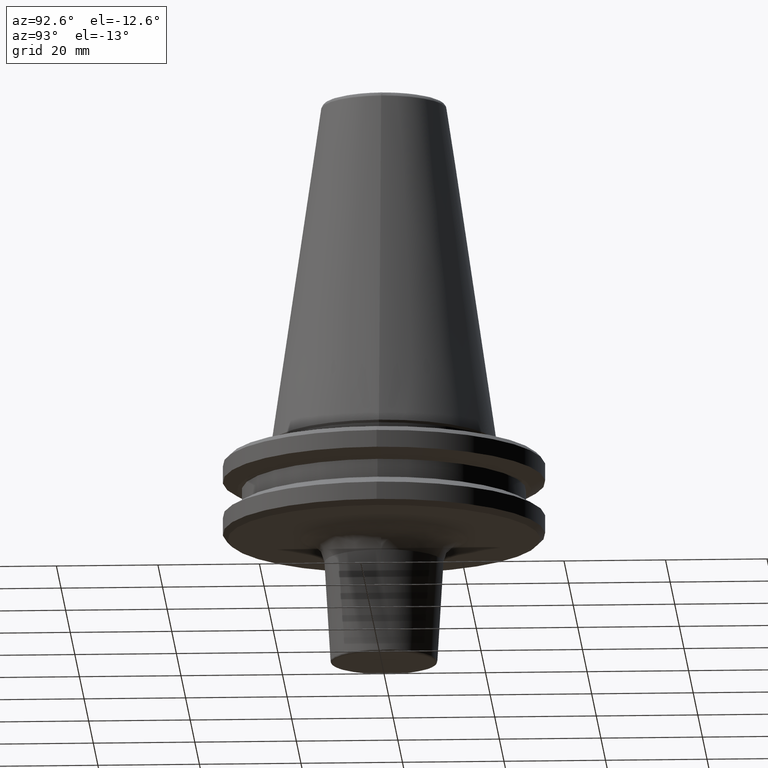
[diagram: clean part render]
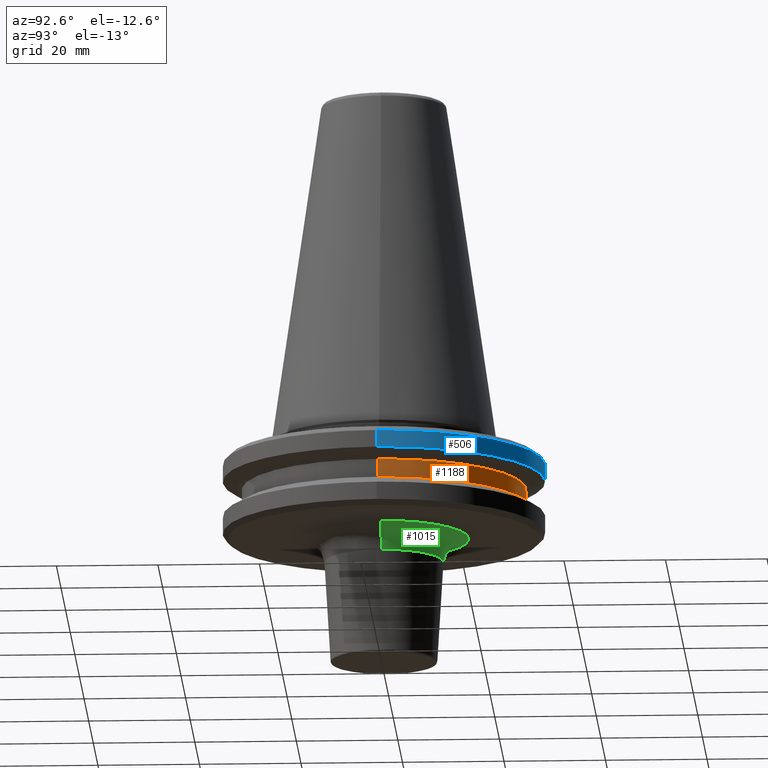
[diagram: same view with three faces highlighted in distinct colors, each labeled with its STEP entity id]
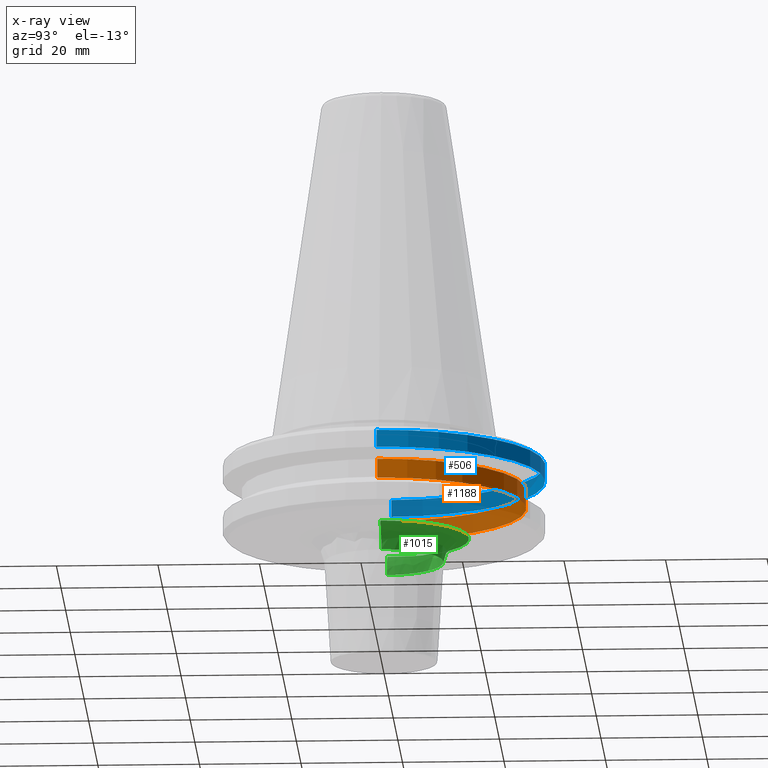
[diagram: x-ray of the same camera — body ghosted, the three highlighted faces saturated]
A machine part, auxiliary view with three faces highlighted in distinct colors.
The next image is the same camera in x-ray (body ghosted, the three faces saturated) — at least one of them is partly hidden behind the body in this view.
Their STEP definitions:

[orange] entity #1188 — the highlighted cylindrical surface (partial cylindrical patch) has radius 28 mm, axis along (0, 0, 1).
#118 = AXIS2_PLACEMENT_3D ( 'NONE', #353, #350, #347 ) ;
#231 = DIRECTION ( 'NONE',  ( 0.0000000000000000000, 0.0000000000000000000, 1.000000000000000000 ) ) ;
#246 = EDGE_LOOP ( 'NONE', ( #766, #1271, #1167, #858 ) ) ;
#305 = EDGE_CURVE ( 'NONE', #515, #1224, #435, .T. ) ;
#338 = CARTESIAN_POINT ( 'NONE',  ( 28.00000000000000000, 0.0000000000000000000, 113.5216080541959500 ) ) ;
#341 = DIRECTION ( 'NONE',  ( 0.0000000000000000000, 0.0000000000000000000, 1.000000000000000000 ) ) ;
#347 = DIRECTION ( 'NONE',  ( 1.000000000000000000, 0.0000000000000000000, 0.0000000000000000000 ) ) ;
#350 = DIRECTION ( 'NONE',  ( -0.0000000000000000000, -0.0000000000000000000, -1.000000000000000000 ) ) ;
#353 = CARTESIAN_POINT ( 'NONE',  ( 0.0000000000000000000, 0.0000000000000000000, -9.199999999999999300 ) ) ;
#364 = CIRCLE ( 'NONE', #118, 28.00000000000000000 ) ;
#435 = LINE ( 'NONE', #1361, #821 ) ;
#463 = VERTEX_POINT ( 'NONE', #1366 ) ;
#470 = CIRCLE ( 'NONE', #556, 28.00000000000000000 ) ;
#471 = DIRECTION ( 'NONE',  ( 1.000000000000000000, 0.0000000000000000000, 0.0000000000000000000 ) ) ;
#515 = VERTEX_POINT ( 'NONE', #1385 ) ;
#556 = AXIS2_PLACEMENT_3D ( 'NONE', #750, #747, #741 ) ;
#594 = EDGE_CURVE ( 'NONE', #1242, #515, #470, .T. ) ;
#623 = CARTESIAN_POINT ( 'NONE',  ( 0.0000000000000000000, 0.0000000000000000000, 113.5216080541959500 ) ) ;
#741 = DIRECTION ( 'NONE',  ( 1.000000000000000000, 0.0000000000000000000, 0.0000000000000000000 ) ) ;
#747 = DIRECTION ( 'NONE',  ( 0.0000000000000000000, 0.0000000000000000000, 1.000000000000000000 ) ) ;
#750 = CARTESIAN_POINT ( 'NONE',  ( 0.0000000000000000000, 0.0000000000000000000, -13.00000000000001100 ) ) ;
#766 = ORIENTED_EDGE ( 'NONE', *, *, #594, .T. ) ;
#809 = CYLINDRICAL_SURFACE ( 'NONE', #1371, 28.00000000000000000 ) ;
#821 = VECTOR ( 'NONE', #1068, 1000.000000000000000 ) ;
#839 = LINE ( 'NONE', #338, #1505 ) ;
#858 = ORIENTED_EDGE ( 'NONE', *, *, #1003, .F. ) ;
#985 = EDGE_CURVE ( 'NONE', #1224, #463, #364, .T. ) ;
#1003 = EDGE_CURVE ( 'NONE', #1242, #463, #839, .T. ) ;
#1068 = DIRECTION ( 'NONE',  ( 0.0000000000000000000, 0.0000000000000000000, 1.000000000000000000 ) ) ;
#1145 = CARTESIAN_POINT ( 'NONE',  ( 28.00000000000000000, 0.0000000000000000000, -13.00000000000001100 ) ) ;
#1167 = ORIENTED_EDGE ( 'NONE', *, *, #985, .T. ) ;
#1188 = ADVANCED_FACE ( 'NONE', ( #1191 ), #809, .T. ) ;
#1191 = FACE_OUTER_BOUND ( 'NONE', #246, .T. ) ;
#1224 = VERTEX_POINT ( 'NONE', #1433 ) ;
#1242 = VERTEX_POINT ( 'NONE', #1145 ) ;
#1271 = ORIENTED_EDGE ( 'NONE', *, *, #305, .T. ) ;
#1361 = CARTESIAN_POINT ( 'NONE',  ( -28.00000000000000000, 3.429011037612589300E-015, 113.5216080541959500 ) ) ;
#1366 = CARTESIAN_POINT ( 'NONE',  ( 28.00000000000000000, 0.0000000000000000000, -9.199999999999999300 ) ) ;
#1371 = AXIS2_PLACEMENT_3D ( 'NONE', #623, #231, #471 ) ;
#1385 = CARTESIAN_POINT ( 'NONE',  ( -28.00000000000000000, 3.429011037612594400E-015, -13.00000000000001100 ) ) ;
#1433 = CARTESIAN_POINT ( 'NONE',  ( -28.00000000000000000, 3.429011037612594400E-015, -9.199999999999999300 ) ) ;
#1505 = VECTOR ( 'NONE', #341, 1000.000000000000000 ) ;

[blue] entity #506 — the highlighted cylindrical surface (partial cylindrical patch) has radius 31.75 mm, axis along (0, 0, 1).
#14 = VERTEX_POINT ( 'NONE', #582 ) ;
#76 = CARTESIAN_POINT ( 'NONE',  ( 0.0000000000000000000, 0.0000000000000000000, -7.578163357943284800 ) ) ;
#100 = DIRECTION ( 'NONE',  ( 0.0000000000000000000, 0.0000000000000000000, 1.000000000000000000 ) ) ;
#141 = EDGE_CURVE ( 'NONE', #14, #888, #1398, .T. ) ;
#163 = FACE_OUTER_BOUND ( 'NONE', #1344, .T. ) ;
#169 = CIRCLE ( 'NONE', #1029, 31.74999999999983300 ) ;
#308 = DIRECTION ( 'NONE',  ( 1.000000000000000000, 0.0000000000000000000, 0.0000000000000000000 ) ) ;
#384 = ORIENTED_EDGE ( 'NONE', *, *, #1428, .F. ) ;
#392 = VERTEX_POINT ( 'NONE', #1120 ) ;
#506 = ADVANCED_FACE ( 'NONE', ( #163 ), #1259, .T. ) ;
#582 = CARTESIAN_POINT ( 'NONE',  ( 31.75000000000000000, 0.0000000000000000000, -7.578163357943284800 ) ) ;
#584 = CARTESIAN_POINT ( 'NONE',  ( 31.75000000000000000, 0.0000000000000000000, 113.5216080541959500 ) ) ;
#595 = DIRECTION ( 'NONE',  ( 0.0000000000000000000, 0.0000000000000000000, 1.000000000000000000 ) ) ;
#604 = VERTEX_POINT ( 'NONE', #961 ) ;
#618 = CARTESIAN_POINT ( 'NONE',  ( -31.75000000000000000, 3.888253587292846500E-015, -7.578163357943284800 ) ) ;
#636 = AXIS2_PLACEMENT_3D ( 'NONE', #1197, #1166, #1515 ) ;
#665 = DIRECTION ( 'NONE',  ( 1.000000000000000000, 0.0000000000000000000, 0.0000000000000000000 ) ) ;
#668 = DIRECTION ( 'NONE',  ( -0.0000000000000000000, -0.0000000000000000000, 1.000000000000000000 ) ) ;
#704 = CARTESIAN_POINT ( 'NONE',  ( 0.0000000000000000000, 0.0000000000000000000, -4.199999999999926500 ) ) ;
#740 = ORIENTED_EDGE ( 'NONE', *, *, #779, .T. ) ;
#779 = EDGE_CURVE ( 'NONE', #888, #392, #982, .T. ) ;
#857 = DIRECTION ( 'NONE',  ( 0.0000000000000000000, 0.0000000000000000000, 1.000000000000000000 ) ) ;
#888 = VERTEX_POINT ( 'NONE', #618 ) ;
#896 = EDGE_CURVE ( 'NONE', #14, #604, #1380, .T. ) ;
#937 = VECTOR ( 'NONE', #857, 1000.000000000000000 ) ;
#961 = CARTESIAN_POINT ( 'NONE',  ( 31.74999999999983300, 0.0000000000000000000, -4.199999999999926500 ) ) ;
#982 = LINE ( 'NONE', #1047, #937 ) ;
#1029 = AXIS2_PLACEMENT_3D ( 'NONE', #704, #668, #665 ) ;
#1047 = CARTESIAN_POINT ( 'NONE',  ( -31.75000000000000000, 3.888253587292846500E-015, 113.5216080541959500 ) ) ;
#1120 = CARTESIAN_POINT ( 'NONE',  ( -31.74999999999983300, 3.888253587292836200E-015, -4.199999999999926500 ) ) ;
#1166 = DIRECTION ( 'NONE',  ( 0.0000000000000000000, 0.0000000000000000000, 1.000000000000000000 ) ) ;
#1197 = CARTESIAN_POINT ( 'NONE',  ( 0.0000000000000000000, 0.0000000000000000000, 113.5216080541959500 ) ) ;
#1228 = VECTOR ( 'NONE', #595, 1000.000000000000000 ) ;
#1255 = ORIENTED_EDGE ( 'NONE', *, *, #141, .T. ) ;
#1259 = CYLINDRICAL_SURFACE ( 'NONE', #636, 31.75000000000000000 ) ;
#1268 = ORIENTED_EDGE ( 'NONE', *, *, #896, .F. ) ;
#1344 = EDGE_LOOP ( 'NONE', ( #1255, #740, #384, #1268 ) ) ;
#1354 = AXIS2_PLACEMENT_3D ( 'NONE', #76, #100, #308 ) ;
#1380 = LINE ( 'NONE', #584, #1228 ) ;
#1398 = CIRCLE ( 'NONE', #1354, 31.75000000000000000 ) ;
#1428 = EDGE_CURVE ( 'NONE', #604, #392, #169, .T. ) ;
#1515 = DIRECTION ( 'NONE',  ( 1.000000000000000000, 0.0000000000000000000, 0.0000000000000000000 ) ) ;

[green] entity #1015 — the highlighted face is a freeform B-spline surface patch.
#4 = CARTESIAN_POINT ( 'NONE',  ( 15.56066614214688200, 6.087461871300401000, -19.10000000000000500 ) ) ;
#5 = CARTESIAN_POINT ( 'NONE',  ( 16.33148562144493700, 3.573096658816918000, -19.10000000000000900 ) ) ;
#13 = EDGE_LOOP ( 'NONE', ( #38, #1502, #669, #1442, #670 ) ) ;
#38 = ORIENTED_EDGE ( 'NONE', *, *, #977, .F. ) ;
#62 = CARTESIAN_POINT ( 'NONE',  ( 15.62173324705955600, 5.929593814993572700, -19.10000000000000100 ) ) ;
#125 = CARTESIAN_POINT ( 'NONE',  ( 16.70899191454728300, 0.5109131243993810800, -19.10000000000000900 ) ) ;
#132 = CARTESIAN_POINT ( 'NONE',  ( 15.58521129710881000, 6.024348239625146200, -19.10000000000000100 ) ) ;
#139 = CARTESIAN_POINT ( 'NONE',  ( -16.70899191454727600, 2.046261346512933100E-015, -19.10000000000000900 ) ) ;
#189 = DIRECTION ( 'NONE',  ( -1.224646799147353200E-016, -1.000000000000000000, 0.0000000000000000000 ) ) ;
#198 = CARTESIAN_POINT ( 'NONE',  ( 16.67412310652930100, 1.274150364136525300, -19.10000000000000900 ) ) ;
#230 = VERTEX_POINT ( 'NONE', #513 ) ;
#235 = CARTESIAN_POINT ( 'NONE',  ( -16.70899191454728000, 2.046261346512933500E-015, -19.10000000000001200 ) ) ;
#241 = CARTESIAN_POINT ( 'NONE',  ( -16.70899191454727600, 33.41798382909455300, -19.10000000000001200 ) ) ;
#243 = CARTESIAN_POINT ( 'NONE',  ( 16.70899191454728000, 33.41798382909455300, -19.10000000000001200 ) ) ;
#244 = CARTESIAN_POINT ( 'NONE',  ( 16.70899191454728000, 0.0000000000000000000, -19.10000000000001200 ) ) ;
#247 = CARTESIAN_POINT ( 'NONE',  ( -13.91738258006084200, 1.704387802918064000E-015, -19.10000000000000900 ) ) ;
#253 = CARTESIAN_POINT ( 'NONE',  ( -13.91738258006084000, 27.83476516012168000, -19.10000000000001600 ) ) ;
#256 = CARTESIAN_POINT ( 'NONE',  ( 13.91738258006084000, 27.83476516012168000, -19.10000000000001600 ) ) ;
#257 = CARTESIAN_POINT ( 'NONE',  ( 13.91738258006084200, 0.0000000000000000000, -19.10000000000000900 ) ) ;
#263 = CARTESIAN_POINT ( 'NONE',  ( -11.88516356507829700, 1.455512751731588300E-015, -21.01394058202840800 ) ) ;
#266 = CARTESIAN_POINT ( 'NONE',  ( -11.88516356507829600, 23.77032713015659100, -21.01394058202841500 ) ) ;
#269 = CARTESIAN_POINT ( 'NONE',  ( 11.88516356507829900, 23.77032713015659100, -21.01394058202841500 ) ) ;
#278 = CARTESIAN_POINT ( 'NONE',  ( 11.88516356507829700, 0.0000000000000000000, -21.01394058202840800 ) ) ;
#286 = CARTESIAN_POINT ( 'NONE',  ( -11.71796768721838500, 1.435037162066410900E-015, -23.80053854636027200 ) ) ;
#289 = CARTESIAN_POINT ( 'NONE',  ( -11.71796768721838200, 23.43593537443676700, -23.80053854636027200 ) ) ;
#290 = CARTESIAN_POINT ( 'NONE',  ( 11.71796768721838500, 23.43593537443676700, -23.80053854636027200 ) ) ;
#294 = CARTESIAN_POINT ( 'NONE',  ( 11.71796768721838500, 0.0000000000000000000, -23.80053854636027200 ) ) ;
#326 = CARTESIAN_POINT ( 'NONE',  ( -11.71796768721838500, 1.740649254289672300E-015, -23.80053854636027200 ) ) ;
#344 = CARTESIAN_POINT ( 'NONE',  ( 16.45283330147772800, 2.914738401240459400, -19.10000000000000500 ) ) ;
#345 = CARTESIAN_POINT ( 'NONE',  ( 14.13790343973266100, 8.905924171324393500, -19.10000000000000100 ) ) ;
#348 = CARTESIAN_POINT ( 'NONE',  ( 14.50404968136630900, 8.304593459410961400, -19.10000000000000900 ) ) ;
#371 = DIRECTION ( 'NONE',  ( 1.000000000000000000, 0.0000000000000000000, 0.0000000000000000000 ) ) ;
#376 = DIRECTION ( 'NONE',  ( -0.0000000000000000000, -0.0000000000000000000, -1.000000000000000000 ) ) ;
#379 = CARTESIAN_POINT ( 'NONE',  ( 0.0000000000000000000, 0.0000000000000000000, -23.80053854636027200 ) ) ;
#381 = CARTESIAN_POINT ( 'NONE',  ( 14.25024019506500400, 8.726806685066005500, -19.09999999999999800 ) ) ;
#405 = CARTESIAN_POINT ( 'NONE',  ( 1.435037162066411100E-015, 11.71796768721838700, -23.80053854636027200 ) ) ;
#443 = CARTESIAN_POINT ( 'NONE',  ( 15.54881040975413100, 6.117688604166787100, -19.10000000000000900 ) ) ;
#487 = CARTESIAN_POINT ( 'NONE',  ( 15.70488065283292800, 5.707912317689069100, -19.10000000000000900 ) ) ;
#513 = CARTESIAN_POINT ( 'NONE',  ( 11.71796768721838500, 0.0000000000000000000, -23.80053854636027200 ) ) ;
#536 = CARTESIAN_POINT ( 'NONE',  ( 12.63042113517344600, 10.99960928808532900, -19.10000000000000500 ) ) ;
#540 = CARTESIAN_POINT ( 'NONE',  ( -16.70899191454727600, 2.046261346512933100E-015, -24.10000000000000900 ) ) ;
#570 = CARTESIAN_POINT ( 'NONE',  ( 0.0000000000000000000, 0.0000000000000000000, -23.80053854636027200 ) ) ;
#596 = CARTESIAN_POINT ( 'NONE',  ( 16.43620118971337600, 3.007126828543615000, -19.10000000000000100 ) ) ;
#622 = VERTEX_POINT ( 'NONE', #734 ) ;
#643 = DIRECTION ( 'NONE',  ( -0.0000000000000000000, -0.0000000000000000000, -1.000000000000000000 ) ) ;
#644 = CARTESIAN_POINT ( 'NONE',  ( 15.32806192371163000, 6.675338272899773900, -19.10000000000000100 ) ) ;
#652 = CARTESIAN_POINT ( 'NONE',  ( 15.86289355459953200, 5.262197963756685600, -19.10000000000000100 ) ) ;
#659 = CIRCLE ( 'NONE', #897, 11.71796768721838500 ) ;
#669 = ORIENTED_EDGE ( 'NONE', *, *, #1409, .F. ) ;
#670 = ORIENTED_EDGE ( 'NONE', *, *, #1208, .F. ) ;
#693 = DIRECTION ( 'NONE',  ( 1.000000000000000000, 0.0000000000000000000, 0.0000000000000000000 ) ) ;
#706 = CARTESIAN_POINT ( 'NONE',  ( 16.44157358222191300, 2.977591022491218100, -19.09999999999999400 ) ) ;
#713 = DIRECTION ( 'NONE',  ( 1.000000000000000000, 0.0000000000000000000, 0.0000000000000000000 ) ) ;
#719 = DIRECTION ( 'NONE',  ( 0.0000000000000000000, 1.000000000000000000, 0.0000000000000000000 ) ) ;
#722 = CARTESIAN_POINT ( 'NONE',  ( 16.70899191454727600, 0.0000000000000000000, -24.10000000000000900 ) ) ;
#734 = CARTESIAN_POINT ( 'NONE',  ( 16.70899191454727600, 0.0000000000000000000, -19.10000000000000900 ) ) ;
#785 = CARTESIAN_POINT ( 'NONE',  ( 16.14579171901220200, 4.361363818598465300, -19.10000000000000100 ) ) ;
#806 = EDGE_CURVE ( 'NONE', #230, #622, #1032, .T. ) ;
#897 = AXIS2_PLACEMENT_3D ( 'NONE', #379, #376, #371 ) ;
#901 = CARTESIAN_POINT ( 'NONE',  ( 14.02478801515494700, 9.082997829093526900, -19.10000000000000500 ) ) ;
#935 = CARTESIAN_POINT ( 'NONE',  ( 13.35436265842265700, 10.10853159735744500, -19.10000000000000500 ) ) ;
#940 = AXIS2_PLACEMENT_3D ( 'NONE', #570, #643, #693 ) ;
#964 = CARTESIAN_POINT ( 'NONE',  ( -16.70899191454727600, 2.046261346512933100E-015, -19.10000000000000900 ) ) ;
#966 = CARTESIAN_POINT ( 'NONE',  ( 16.70899191454727600, 0.0000000000000000000, -19.10000000000000900 ) ) ;
#969 = CARTESIAN_POINT ( 'NONE',  ( -16.70899191454728000, 1.022181789261935600, -19.10000000000000500 ) ) ;
#977 = EDGE_CURVE ( 'NONE', #1012, #1288, #659, .T. ) ;
#994 = CARTESIAN_POINT ( 'NONE',  ( -16.61600842649934900, 2.035654846428921700, -19.10000000000000900 ) ) ;
#998 = CARTESIAN_POINT ( 'NONE',  ( -16.42422998240048000, 3.071818056659372700, -19.10000000000000500 ) ) ;
#1007 = CARTESIAN_POINT ( 'NONE',  ( -16.41761142749612600, 3.107017245632829500, -19.10000000000000100 ) ) ;
#1012 = VERTEX_POINT ( 'NONE', #326 ) ;
#1015 = ADVANCED_FACE ( 'NONE', ( #1534 ), #1472, .F. ) ;
#1020 = CARTESIAN_POINT ( 'NONE',  ( 14.06222087813260500, 9.024928931269464300, -19.10000000000000900 ) ) ;
#1031 = CARTESIAN_POINT ( 'NONE',  ( -16.40488619115013700, 3.173529372141791400, -19.10000000000000900 ) ) ;
#1032 = CIRCLE ( 'NONE', #1289, 4.999999999999997300 ) ;
#1034 = CARTESIAN_POINT ( 'NONE',  ( -16.38550312319250300, 3.273211614282239600, -19.10000000000000500 ) ) ;
#1037 = CARTESIAN_POINT ( 'NONE',  ( -16.33820947055414400, 3.505201879248992300, -19.10000000000000100 ) ) ;
#1041 = CARTESIAN_POINT ( 'NONE',  ( 14.97843021607224800, 7.443077310558981800, -19.10000000000000500 ) ) ;
#1043 = VERTEX_POINT ( 'NONE', #139 ) ;
#1045 = CARTESIAN_POINT ( 'NONE',  ( -16.23535618899525800, 3.966775875738679100, -19.10000000000000500 ) ) ;
#1051 = CARTESIAN_POINT ( 'NONE',  ( -15.99658572074876700, 4.880297734942744500, -19.10000000000000500 ) ) ;
#1062 = CARTESIAN_POINT ( 'NONE',  ( -15.73524433917402200, 5.646814527788558600, -19.10000000000000500 ) ) ;
#1075 = CARTESIAN_POINT ( 'NONE',  ( -15.52336150878772300, 6.181971338236239800, -19.10000000000000500 ) ) ;
#1085 = CARTESIAN_POINT ( 'NONE',  ( -15.50973603678870000, 6.216084941041397200, -19.10000000000000100 ) ) ;
#1092 = CARTESIAN_POINT ( 'NONE',  ( -15.48335104158715400, 6.281523939450195800, -19.10000000000000500 ) ) ;
#1097 = CARTESIAN_POINT ( 'NONE',  ( -15.44347772148737600, 6.379528020287766700, -19.10000000000000500 ) ) ;
#1115 = CARTESIAN_POINT ( 'NONE',  ( 16.46945046779878700, 2.820434997123213400, -19.10000000000000900 ) ) ;
#1127 = CARTESIAN_POINT ( 'NONE',  ( -15.34836918350574400, 6.607123291479351400, -19.10000000000000900 ) ) ;
#1140 = CARTESIAN_POINT ( 'NONE',  ( -15.14986894321383400, 7.057990164144843700, -19.10000000000000900 ) ) ;
#1141 = EDGE_CURVE ( 'NONE', #1012, #1043, #1525, .T. ) ;
#1162 = CARTESIAN_POINT ( 'NONE',  ( -14.71973580531538800, 7.942429230605181800, -19.10000000000000100 ) ) ;
#1163 = CARTESIAN_POINT ( 'NONE',  ( -14.29425141743458200, 8.670871838078625200, -19.10000000000000100 ) ) ;
#1170 = CIRCLE ( 'NONE', #940, 11.71796768721838500 ) ;
#1173 = CARTESIAN_POINT ( 'NONE',  ( -13.94673870596859200, 9.202379783223145500, -19.10000000000000500 ) ) ;
#1179 = CARTESIAN_POINT ( 'NONE',  ( -13.90606175176200800, 9.263750344970906900, -19.10000000000000500 ) ) ;
#1182 = CARTESIAN_POINT ( 'NONE',  ( -13.82569420036957200, 9.383296176287261800, -19.10000000000000500 ) ) ;
#1189 = AXIS2_PLACEMENT_3D ( 'NONE', #540, #189, #1333 ) ;
#1194 = CARTESIAN_POINT ( 'NONE',  ( -13.70406479959128300, 9.561733754480993500, -19.10000000000000900 ) ) ;
#1196 = CARTESIAN_POINT ( 'NONE',  ( -13.41271634861447000, 9.971919922134114600, -19.10000000000000500 ) ) ;
#1200 = CARTESIAN_POINT ( 'NONE',  ( -12.79983338335100600, 10.76761953157802800, -19.10000000000000500 ) ) ;
#1208 = EDGE_CURVE ( 'NONE', #1288, #230, #1170, .T. ) ;
#1211 = CARTESIAN_POINT ( 'NONE',  ( -12.22275759030831000, 11.40735166676596900, -19.10000000000000900 ) ) ;
#1217 = CARTESIAN_POINT ( 'NONE',  ( -10.99960928808611800, 12.63042113517079600, -19.10000000000000100 ) ) ;
#1220 = CARTESIAN_POINT ( 'NONE',  ( -10.10853159735479400, 13.35436265842344600, -19.10000000000000500 ) ) ;
#1222 = CARTESIAN_POINT ( 'NONE',  ( -9.082997829093686800, 14.02478801515490400, -19.10000000000000900 ) ) ;
#1229 = CARTESIAN_POINT ( 'NONE',  ( -9.024928931269943900, 14.06222087813241500, -19.10000000000000500 ) ) ;
#1247 = CARTESIAN_POINT ( 'NONE',  ( -8.905924171325299500, 14.13790343973228200, -19.10000000000000100 ) ) ;
#1251 = CARTESIAN_POINT ( 'NONE',  ( -8.726806685067515400, 14.25024019506437300, -19.10000000000000900 ) ) ;
#1263 = CARTESIAN_POINT ( 'NONE',  ( -8.304593459413538900, 14.50404968136522800, -19.10000000000000500 ) ) ;
#1266 = CARTESIAN_POINT ( 'NONE',  ( -7.443077310562433300, 14.97843021607080300, -19.10000000000000500 ) ) ;
#1270 = CARTESIAN_POINT ( 'NONE',  ( -6.675338272901745600, 15.32806192371080700, -19.10000000000000900 ) ) ;
#1276 = CARTESIAN_POINT ( 'NONE',  ( -6.117688604166660900, 15.54881040975418000, -19.10000000000000500 ) ) ;
#1278 = CARTESIAN_POINT ( 'NONE',  ( -6.087461871300481800, 15.56066614214685700, -19.10000000000000900 ) ) ;
#1283 = CARTESIAN_POINT ( 'NONE',  ( -6.024348239625304300, 15.58521129710876500, -19.10000000000000500 ) ) ;
#1288 = VERTEX_POINT ( 'NONE', #405 ) ;
#1289 = AXIS2_PLACEMENT_3D ( 'NONE', #722, #719, #713 ) ;
#1294 = CARTESIAN_POINT ( 'NONE',  ( -5.929593814993849000, 15.62173324705947400, -19.10000000000000900 ) ) ;
#1296 = CARTESIAN_POINT ( 'NONE',  ( -5.707912317689572700, 15.70488065283278300, -19.10000000000001200 ) ) ;
#1298 = CARTESIAN_POINT ( 'NONE',  ( -5.262197963757556900, 15.86289355459927300, -19.10000000000000900 ) ) ;
#1299 = CARTESIAN_POINT ( 'NONE',  ( 16.57242241647687200, 2.159112028488154000, -19.10000000000000100 ) ) ;
#1300 = CARTESIAN_POINT ( 'NONE',  ( -4.361363818599620900, 16.14579171901183200, -19.10000000000000900 ) ) ;
#1303 = CARTESIAN_POINT ( 'NONE',  ( -3.573096658817576500, 16.33148562144472700, -19.10000000000000100 ) ) ;
#1310 = CARTESIAN_POINT ( 'NONE',  ( -3.007126828543572800, 16.43620118971340500, -19.10000000000000900 ) ) ;
#1331 = CARTESIAN_POINT ( 'NONE',  ( -2.977580239806663500, 16.44157557723099900, -19.10000000000000500 ) ) ;
#1332 = CARTESIAN_POINT ( 'NONE',  ( 16.50631696794280100, 2.600222415161877800, -19.10000000000001200 ) ) ;
#1333 = DIRECTION ( 'NONE',  ( -1.000000000000000000, 1.224646799147353500E-016, 0.0000000000000000000 ) ) ;
#1335 = CARTESIAN_POINT ( 'NONE',  ( -2.914717349332521600, 16.45283719649544100, -19.10000000000000100 ) ) ;
#1338 = CARTESIAN_POINT ( 'NONE',  ( -2.820399054841368900, 16.46945711782902700, -19.10000000000000500 ) ) ;
#1340 = CARTESIAN_POINT ( 'NONE',  ( -2.600155322902434100, 16.50632938133259800, -19.10000000000000900 ) ) ;
#1343 = CARTESIAN_POINT ( 'NONE',  ( -2.158997013186251500, 16.57244369657366100, -19.10000000000000500 ) ) ;
#1348 = CARTESIAN_POINT ( 'NONE',  ( -1.273997010400660800, 16.67415147999167500, -19.10000000000000900 ) ) ;
#1353 = CARTESIAN_POINT ( 'NONE',  ( -0.5108254936931753100, 16.70900812795435500, -19.10000000000001600 ) ) ;
#1363 = CARTESIAN_POINT ( 'NONE',  ( 1.021650987386351300, 16.70895948773313900, -19.10000000000000500 ) ) ;
#1365 = B_SPLINE_CURVE_WITH_KNOTS ( 'NONE', 3,
 ( #966, #125, #198, #1299, #1332, #1115, #344, #706, #596, #5, #785, #652, #487, #62, #132, #4, #443, #644, #1041, #348, #381, #345, #1020, #901, #935, #536, #1522, #1512, #1511, #1510, #1495, #1494, #1491, #1487, #1483, #1478, #1476, #1474, #1468, #1462, #1455, #1454, #1453, #1445, #1416, #1414, #1406, #1399, #1393, #1377, #1363, #1353, #1348, #1343, #1340, #1338, #1335, #1331, #1310, #1303, #1300, #1298, #1296, #1294, #1283, #1278, #1276, #1270, #1266, #1263, #1251, #1247, #1229, #1222, #1220, #1217, #1211, #1200, #1196, #1194, #1182, #1179, #1173, #1163, #1162, #1140, #1127, #1097, #1092, #1085, #1075, #1062, #1051, #1045, #1037, #1034, #1031, #1007, #998, #994, #969, #964 ),
 .UNSPECIFIED., .F., .F.,
 ( 4, 1, 1, 1, 1, 2, 2, 1, 1, 1, 1, 2, 2, 1, 1, 1, 2, 2, 2, 1, 1, 1, 2, 2, 1, 1, 1, 1, 2, 2, 1, 1, 1, 1, 2, 2, 2, 1, 1, 1, 1, 2, 2, 1, 1, 1, 1, 2, 2, 1, 1, 1, 2, 2, 2, 1, 1, 1, 2, 2, 1, 1, 1, 1, 2, 2, 1, 1, 1, 1, 2, 2, 4 ),
 ( 0.0000000000000000000, 0.03124999999999969500, 0.04687499999999953500, 0.05468749999999942400, 0.05859374999999937500, 0.06054687499999936200, 0.06249999999999934800, 0.09374999999999930600, 0.1093749999999992500, 0.1171874999999992400, 0.1210937499999992800, 0.1230468749999992900, 0.1249999999999993100, 0.1562499999999993300, 0.1718749999999993300, 0.1796874999999993900, 0.1835937499999994400, 0.1874999999999995300, 0.2500000000000003300, 0.2812500000000007200, 0.2968750000000009400, 0.3046875000000010000, 0.3085937500000011100, 0.3125000000000011700, 0.3437500000000015000, 0.3593750000000017200, 0.3671875000000017800, 0.3710937500000018900, 0.3730468750000018300, 0.3750000000000018300, 0.4062500000000023300, 0.4218750000000026600, 0.4296875000000027800, 0.4335937500000028900, 0.4355468750000028900, 0.4375000000000029400, 0.5000000000000041100, 0.5312500000000046600, 0.5468750000000050000, 0.5546875000000051100, 0.5585937500000052200, 0.5605468750000052200, 0.5625000000000051100, 0.5937500000000055500, 0.6093750000000056600, 0.6171875000000057700, 0.6210937500000056600, 0.6230468750000056600, 0.6250000000000056600, 0.6562500000000045500, 0.6718750000000041100, 0.6796875000000037700, 0.6835937500000036600, 0.6875000000000034400, 0.7500000000000026600, 0.7812500000000022200, 0.7968750000000021100, 0.8046875000000020000, 0.8085937500000020000, 0.8125000000000018900, 0.8437500000000018900, 0.8593750000000017800, 0.8671875000000018900, 0.8710937500000018900, 0.8730468750000018900, 0.8750000000000018900, 0.9062500000000015500, 0.9218750000000014400, 0.9296875000000013300, 0.9335937500000013300, 0.9355468750000013300, 0.9375000000000012200, 1.000000000000000000 ),
 .UNSPECIFIED. ) ;
#1377 = CARTESIAN_POINT ( 'NONE',  ( 2.035830166956604300, 16.61597597727314800, -19.10000000000001200 ) ) ;
#1393 = CARTESIAN_POINT ( 'NONE',  ( 3.071812577892879800, 16.42423099643880500, -19.10000000000000900 ) ) ;
#1399 = CARTESIAN_POINT ( 'NONE',  ( 3.107017245635504300, 16.41761142749541600, -19.10000000000000500 ) ) ;
#1406 = CARTESIAN_POINT ( 'NONE',  ( 3.173529372147016600, 16.40488619114873000, -19.10000000000000900 ) ) ;
#1409 = EDGE_CURVE ( 'NONE', #622, #1043, #1365, .T. ) ;
#1414 = CARTESIAN_POINT ( 'NONE',  ( 3.273211614291165800, 16.38550312319009100, -19.10000000000000500 ) ) ;
#1416 = CARTESIAN_POINT ( 'NONE',  ( 3.505201879265659800, 16.33820947054963600, -19.10000000000000500 ) ) ;
#1442 = ORIENTED_EDGE ( 'NONE', *, *, #806, .F. ) ;
#1445 = CARTESIAN_POINT ( 'NONE',  ( 3.966775875767254400, 16.23535618898753100, -19.10000000000000900 ) ) ;
#1453 = CARTESIAN_POINT ( 'NONE',  ( 4.880297734980840300, 15.99658572073846600, -19.10000000000000500 ) ) ;
#1454 = CARTESIAN_POINT ( 'NONE',  ( 5.646814527810327000, 15.73524433916813300, -19.10000000000000900 ) ) ;
#1455 = CARTESIAN_POINT ( 'NONE',  ( 6.181971338234877300, 15.52336150878809700, -19.10000000000000500 ) ) ;
#1462 = CARTESIAN_POINT ( 'NONE',  ( 6.216084941042970200, 15.50973603678773000, -19.10000000000000100 ) ) ;
#1468 = CARTESIAN_POINT ( 'NONE',  ( 6.281523939453274300, 15.48335104158526000, -19.10000000000000500 ) ) ;
#1472 =( BOUNDED_SURFACE ( )  B_SPLINE_SURFACE ( 3, 3, ( 
 ( #294, #290, #289, #286 ),
 ( #278, #269, #266, #263 ),
 ( #257, #256, #253, #247 ),
 ( #244, #243, #241, #235 ) ),
 .UNSPECIFIED., .F., .F., .T. ) 
 B_SPLINE_SURFACE_WITH_KNOTS ( ( 4, 4 ),
 ( 4, 4 ),
 ( 0.0000000000000000000, 1.000000000000000000 ),
 ( 0.0000000000000000000, 1.000000000000000000 ),
 .UNSPECIFIED. ) 
 GEOMETRIC_REPRESENTATION_ITEM ( )  RATIONAL_B_SPLINE_SURFACE ( (
 ( 1.000000000000000000, 0.3333333333333334300, 0.3333333333333334300, 1.000000000000000000),
 ( 0.8186493336483505700, 0.2728831112161169100, 0.2728831112161169100, 0.8186493336483505700),
 ( 0.8186493336483505700, 0.2728831112161169100, 0.2728831112161169100, 0.8186493336483505700),
 ( 1.000000000000000000, 0.3333333333333334300, 0.3333333333333334300, 1.000000000000000000) ) ) 
 REPRESENTATION_ITEM ( '' )  SURFACE ( )  );
#1474 = CARTESIAN_POINT ( 'NONE',  ( 6.379528020293022900, 15.44347772148413400, -19.10000000000000100 ) ) ;
#1476 = CARTESIAN_POINT ( 'NONE',  ( 6.607123291489158700, 15.34836918349968300, -19.10000000000000500 ) ) ;
#1478 = CARTESIAN_POINT ( 'NONE',  ( 7.057990164161664000, 15.14986894320343500, -19.10000000000000500 ) ) ;
#1483 = CARTESIAN_POINT ( 'NONE',  ( 7.942429230627608300, 14.71973580530153700, -19.10000000000000500 ) ) ;
#1487 = CARTESIAN_POINT ( 'NONE',  ( 8.670871838091446900, 14.29425141742665400, -19.10000000000000100 ) ) ;
#1491 = CARTESIAN_POINT ( 'NONE',  ( 9.202379783221548600, 13.94673870596957600, -19.10000000000000500 ) ) ;
#1494 = CARTESIAN_POINT ( 'NONE',  ( 9.263750344970587100, 13.90606175176210300, -19.10000000000000500 ) ) ;
#1495 = CARTESIAN_POINT ( 'NONE',  ( 9.383296176286650700, 13.82569420036975500, -19.10000000000000100 ) ) ;
#1502 = ORIENTED_EDGE ( 'NONE', *, *, #1141, .T. ) ;
#1510 = CARTESIAN_POINT ( 'NONE',  ( 9.561733754479973900, 13.70406479959158300, -19.10000000000000500 ) ) ;
#1511 = CARTESIAN_POINT ( 'NONE',  ( 9.971919922132380900, 13.41271634861498900, -19.10000000000000900 ) ) ;
#1512 = CARTESIAN_POINT ( 'NONE',  ( 10.76761953157571000, 12.79983338335169700, -19.10000000000000500 ) ) ;
#1522 = CARTESIAN_POINT ( 'NONE',  ( 11.40735166676465300, 12.22275759030870300, -19.10000000000000900 ) ) ;
#1525 = CIRCLE ( 'NONE', #1189, 4.999999999999997300 ) ;
#1534 = FACE_OUTER_BOUND ( 'NONE', #13, .T. ) ;